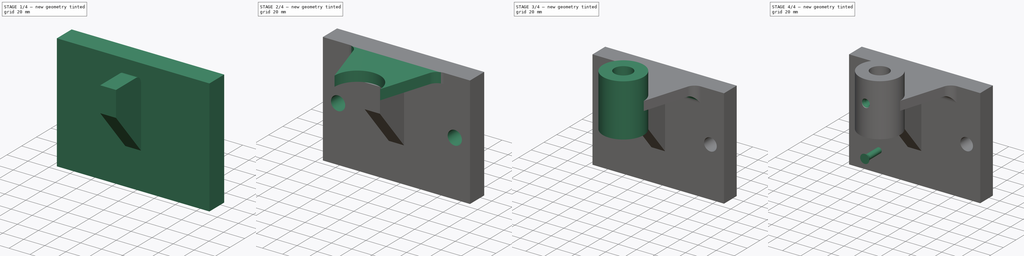
[diagram: build sequence overview — one tinted view per stage of 4, left to right]
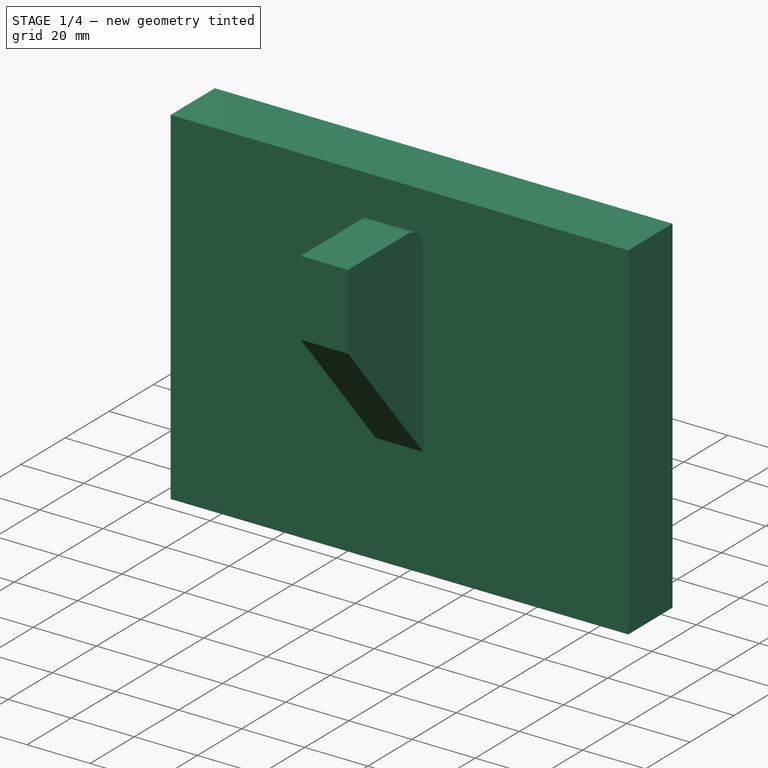
[diagram: stage 1 of 4 — iso view after this stage's code; geometry added in this stage tinted green]
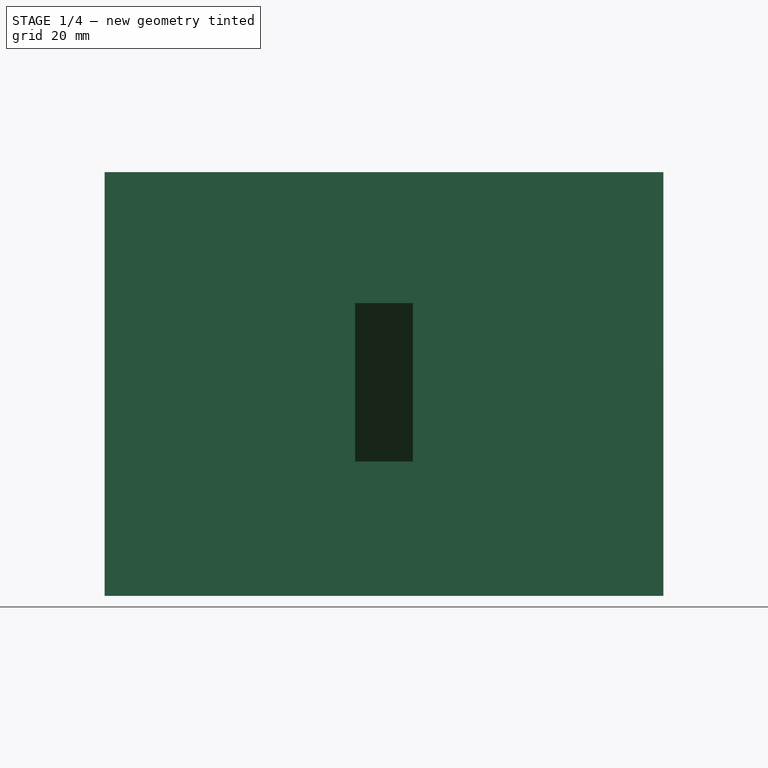
[diagram: stage 1 of 4 — front view after this stage's code; geometry added in this stage tinted green]
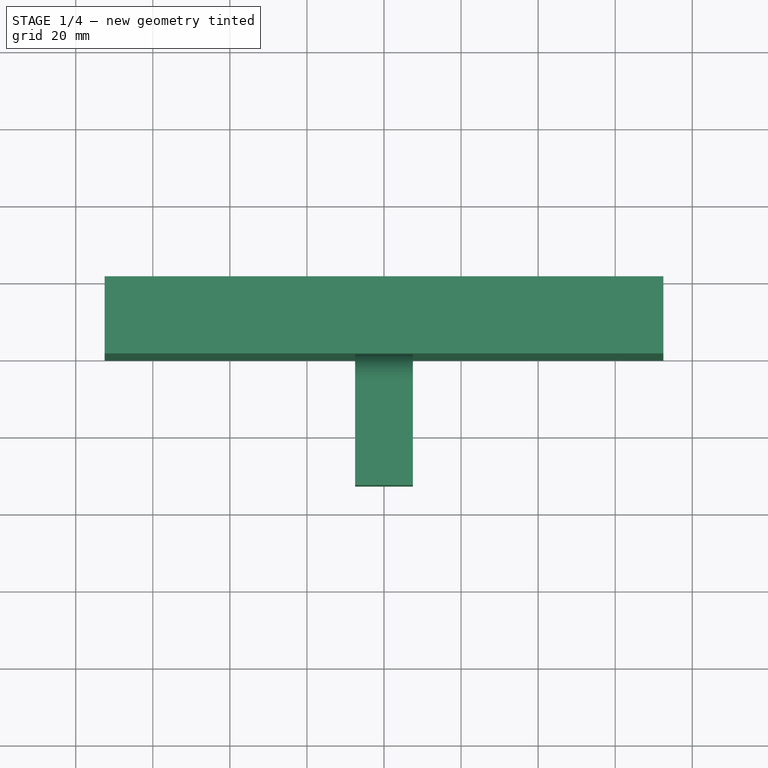
[diagram: stage 1 of 4 — top view after this stage's code; geometry added in this stage tinted green]
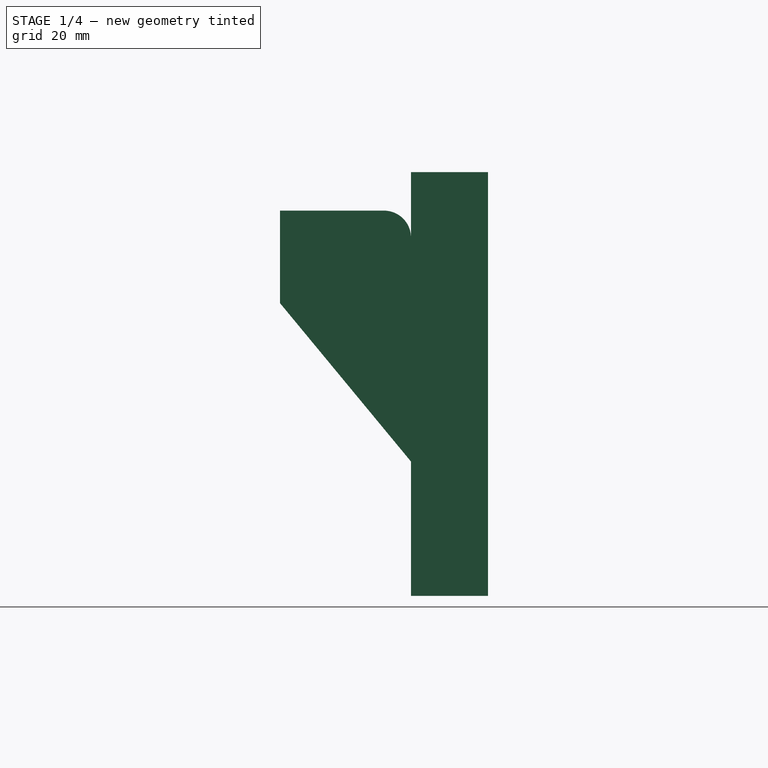
[diagram: stage 1 of 4 — right view after this stage's code; geometry added in this stage tinted green]
FCSTD DOCUMENT  (FreeCAD 0.16R)
Label: Fig 4.11 Final
License: All rights reserved
LicenseURL: http://en.wikipedia.org/wiki/All_rights_reserved
objects: Sketcher::SketchObject×6, PartDesign::Pad×4, PartDesign::Pocket×1, PartDesign::Fillet×1, PartDesign::Revolution×1, Part::Feature×1, Part::Cut×1, Part::MultiFuse×1
note: 22 computed .brp shape members not serialized (recipe doc carries the construction recipe); baked Part::Feature solids carry a one-line shape summary decoded from their .brp

FEATURE [Sketcher::SketchObject] Sketch
  Placement = pos=(0,0,0) rot=(-1,0,0;4.71239rad)
  sketch-geometry (4):
    g0: LineSegment StartX=-72.5 StartY=55 StartZ=0 EndX=72.5 EndY=55 EndZ=0
    g1: LineSegment StartX=72.5 StartY=55 StartZ=0 EndX=72.5 EndY=-55 EndZ=0
    g2: LineSegment StartX=72.5 StartY=-55 StartZ=0 EndX=-72.5 EndY=-55 EndZ=0
    g3: LineSegment StartX=-72.5 StartY=-55 StartZ=0 EndX=-72.5 EndY=55 EndZ=0
  constraints (12):
    c: Coincident(g0,g1)
    c: Coincident(g1,g2)
    c: Coincident(g2,g3)
    c: Coincident(g3,g0)
    c: Horizontal(g0)
    c: Horizontal(g2)
    c: Vertical(g1)
    c: Vertical(g3)
    c: DistanceY(g3,g3) = 110
    c: DistanceX(g0,g0) = 145
    c: Symmetric(g0,g0,g-2)
    c: Symmetric(g2,g0,g-1)
FEATURE [PartDesign::Pad] Pad
  Length = 20
  Length2 = 100
  Placement = pos=(0,0,0) rot=(-1,0,0;4.71239rad)
  Sketch = -> Sketch
  Type = 0
FEATURE [Sketcher::SketchObject] Sketch004
  Placement = pos=(0,0,0) rot=(0.57735,0.57735,0.57735;2.0944rad)
  sketch-geometry (5):
    g0: LineSegment StartX=-20 StartY=-20.1196 StartZ=0 EndX=-20 EndY=38 EndZ=0
    g1: LineSegment StartX=-27 StartY=45 StartZ=0 EndX=-54 EndY=45 EndZ=0
    g2: LineSegment StartX=-54 StartY=45 StartZ=0 EndX=-54 EndY=21 EndZ=0
    g3: LineSegment StartX=-54 StartY=21 StartZ=0 EndX=-20 EndY=-20.1196 EndZ=0
    g4: ArcOfCircle CenterX=-27 CenterY=38 CenterZ=0 NormalX=0 NormalY=0 NormalZ=1 Radius=7 StartAngle=0 EndAngle=1.5708
  constraints (13):
    c: Vertical(g0)
    c: Horizontal(g1)
    c: Coincident(g1,g2)
    c: Vertical(g2)
    c: Coincident(g2,g3)
    c: Coincident(g3,g0)
    c: DistanceX(g0,g-1) = 20
    c: DistanceY(g-1,g2) = 21
    c: DistanceX(g2,g-1) = 54
    c: Tangent(g1,g4) = -1.5708
    c: Tangent(g0,g4) = -1.5708
    c: DistanceY(g-1,g1) = 45
    c: Radius(g4) = 7
FEATURE [PartDesign::Pad] Pad003
  Length = 15
  Length2 = 100
  Midplane = true
  Placement = pos=(0,0,0) rot=(0.57735,0.57735,0.57735;2.0944rad)
  Sketch = -> Sketch004
  Type = 0
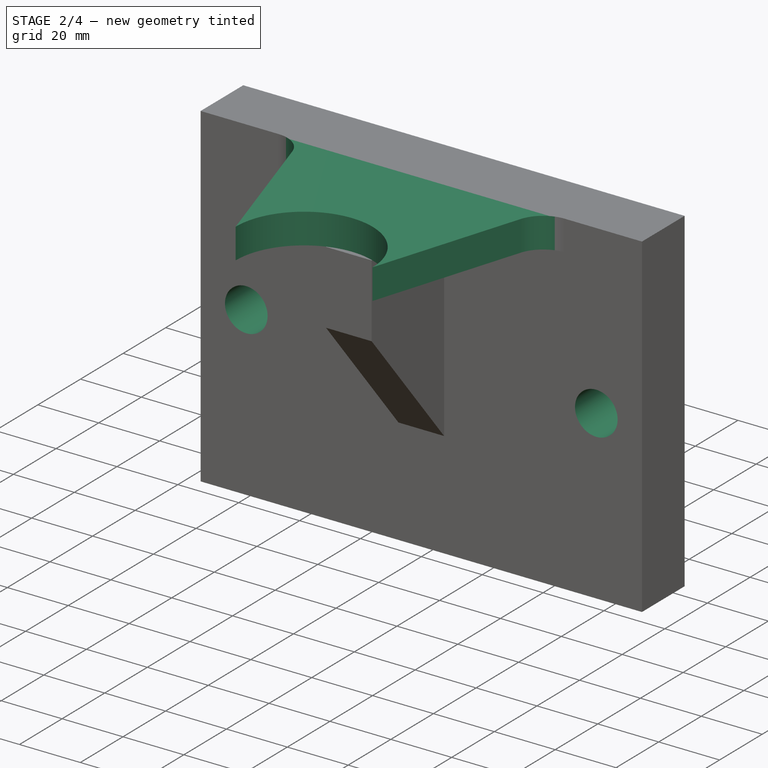
[diagram: stage 2 of 4 — iso view after this stage's code; geometry added in this stage tinted green]
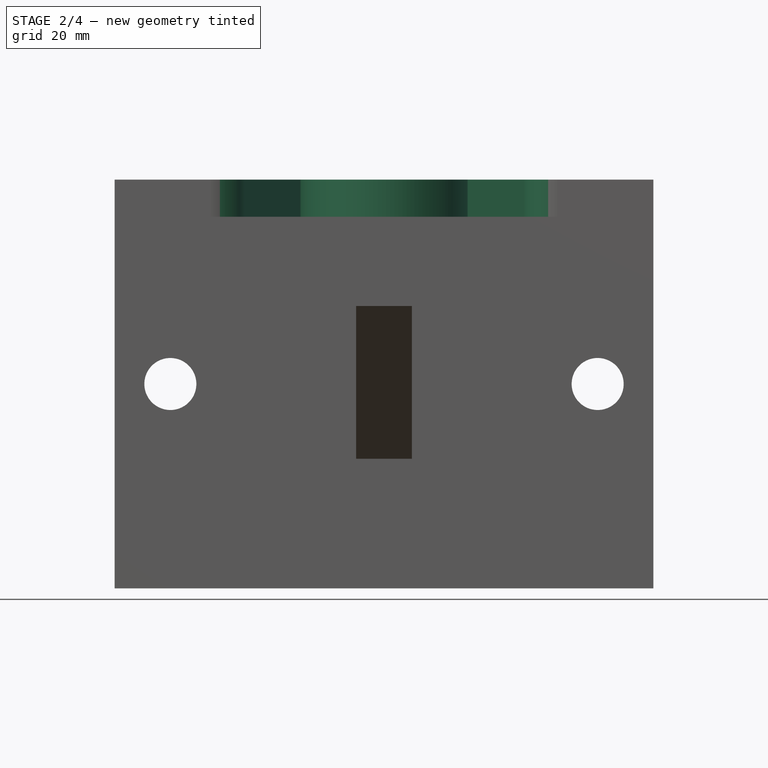
[diagram: stage 2 of 4 — front view after this stage's code; geometry added in this stage tinted green]
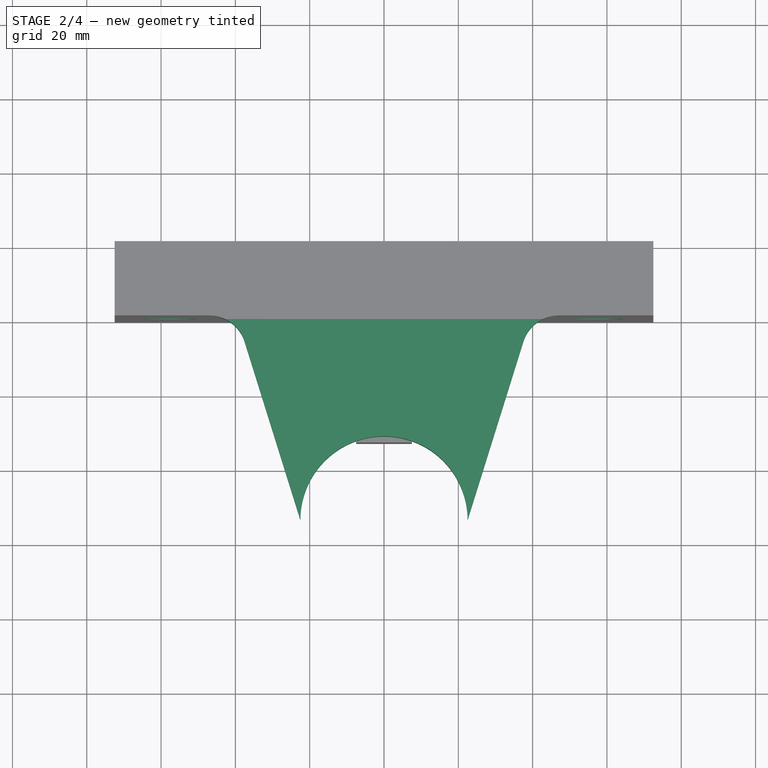
[diagram: stage 2 of 4 — top view after this stage's code; geometry added in this stage tinted green]
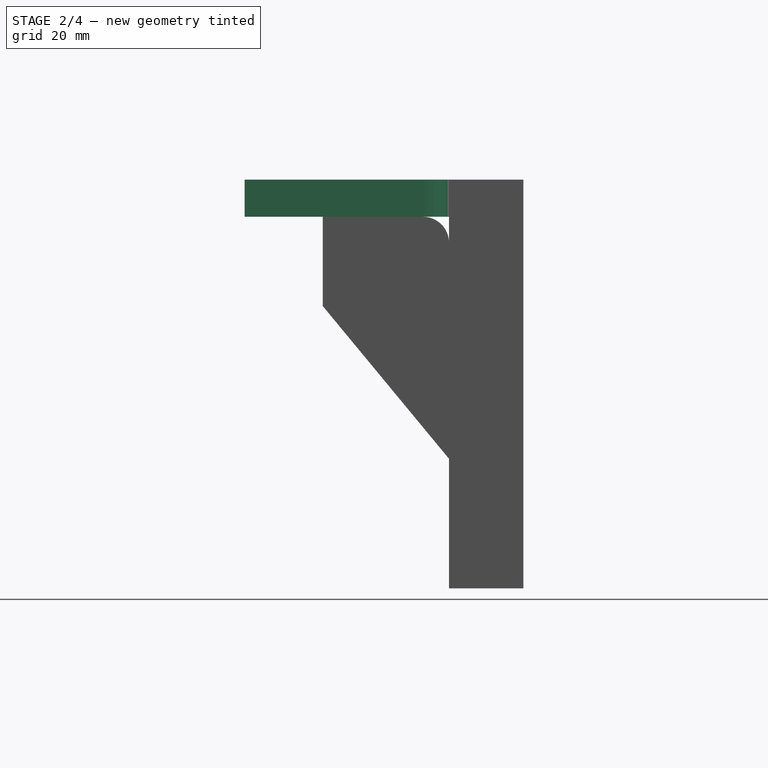
[diagram: stage 2 of 4 — right view after this stage's code; geometry added in this stage tinted green]
FEATURE [Sketcher::SketchObject] Sketch001
  Placement = pos=(0,-20,0) rot=(1,0,0;1.5708rad)
  Support = -> Pad [Face6]
  sketch-geometry (2):
    g0: Circle CenterX=-57.5 CenterY=0 CenterZ=0 NormalX=0 NormalY=0 NormalZ=1 Radius=7
    g1: Circle CenterX=57.5 CenterY=0 CenterZ=0 NormalX=0 NormalY=0 NormalZ=1 Radius=7
  constraints (6):
    c: PointOnObject(g0,g-1)
    c: PointOnObject(g1,g-1)
    c: Equal(g0,g1)
    c: Radius(g0) = 7
    c: DistanceX(g0,g1) = 115
    c: Symmetric(g0,g1,g-2)
FEATURE [PartDesign::Pocket] Pocket
  Length = 5
  Placement = pos=(0,0,0) rot=(-1,0,0;4.71239rad)
  Sketch = -> Sketch001
  Type = 1
FEATURE [Sketcher::SketchObject] Sketch003
  Placement = pos=(0,0,55) rot=(0,0,1;3.14159rad)
  Support = -> Pocket [Face1]
  sketch-geometry (6):
    g0: LineSegment StartX=-47.0445 StartY=20 StartZ=0 EndX=47.0445 EndY=20 EndZ=0
    g1: ArcOfCircle CenterX=0 CenterY=75 CenterZ=0 NormalX=0 NormalY=0 NormalZ=1 Radius=22.5 StartAngle=3.14159 EndAngle=6.28319
    g2: LineSegment StartX=-22.5 StartY=75 StartZ=0 EndX=-37.5 EndY=27.0163 EndZ=0
    g3: LineSegment StartX=22.5 StartY=75 StartZ=0 EndX=37.5 EndY=27.0163 EndZ=0
    g4: ArcOfCircle CenterX=47.0445 CenterY=30 CenterZ=0 NormalX=0 NormalY=0 NormalZ=1 Radius=10 StartAngle=3.44457 EndAngle=4.71239
    g5: ArcOfCircle CenterX=-47.0445 CenterY=30 CenterZ=0 NormalX=0 NormalY=0 NormalZ=1 Radius=10 StartAngle=4.71239 EndAngle=5.9802
  constraints (19):
    c: Coincident(g2,g1)
    c: Coincident(g3,g1)
    c: DistanceY(g-1,g1) = 75
    c: Radius(g1) = 22.5
    c: DistanceX(g2,g3) = 75
    c: Coincident(g4,g3)
    c: Coincident(g4,g0)
    c: Coincident(g5,g0)
    c: Radius(g4) = 10
    c: Tangent(g4,g3)
    c: Symmetric(g3,g2,g-2)
    c: Symmetric(g1,g1,g-2)
    c: Tangent(g5,g2)
    c: Radius(g5) = 10
    c: Tangent(g0,g5)
    c: Tangent(g4,g0)
    c: Horizontal(g0)
    c: DistanceY(g-1,g0) = 20
    c: Coincident(g2,g5)
FEATURE [PartDesign::Pad] Pad002
  Length = 10
  Length2 = 100
  Placement = pos=(0,0,0) rot=(-1,0,0;4.71239rad)
  Reversed = true
  Sketch = -> Sketch003
  Type = 0
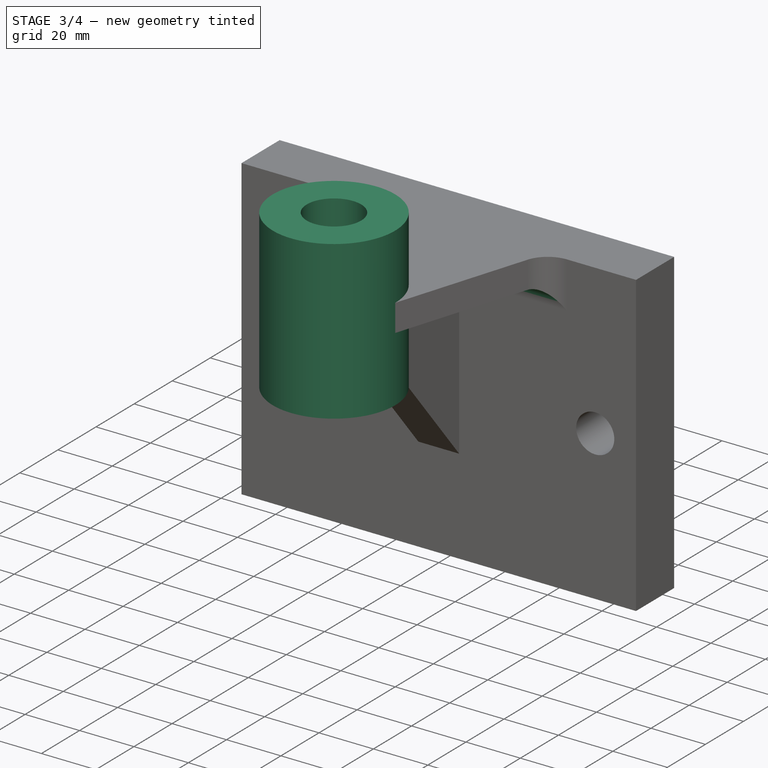
[diagram: stage 3 of 4 — iso view after this stage's code; geometry added in this stage tinted green]
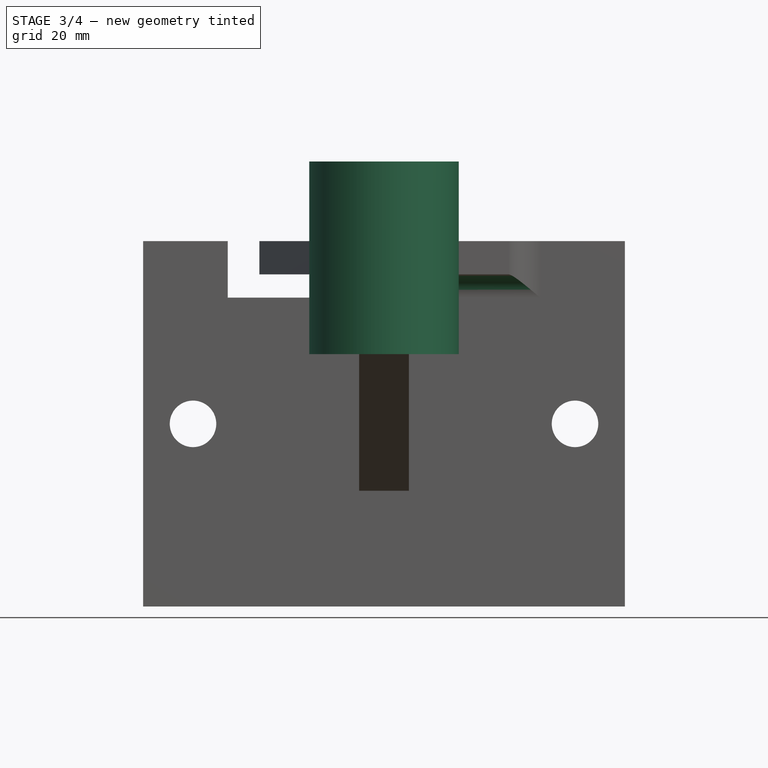
[diagram: stage 3 of 4 — front view after this stage's code; geometry added in this stage tinted green]
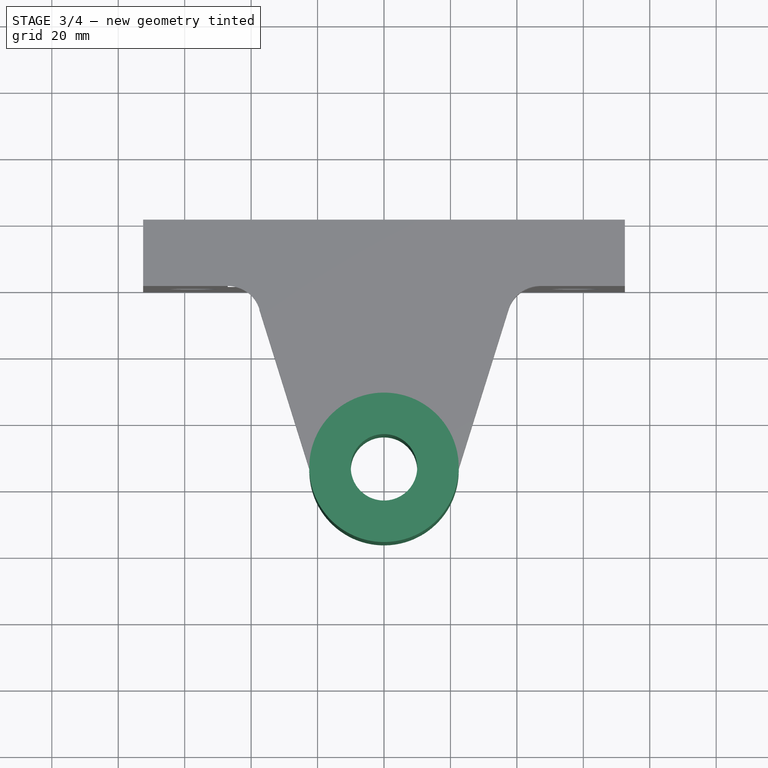
[diagram: stage 3 of 4 — top view after this stage's code; geometry added in this stage tinted green]
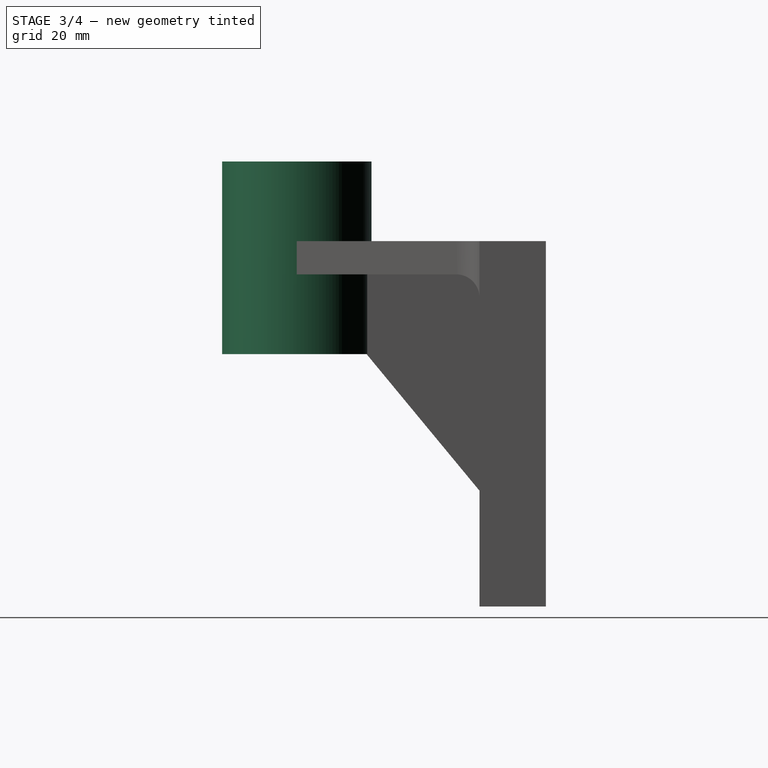
[diagram: stage 3 of 4 — right view after this stage's code; geometry added in this stage tinted green]
FEATURE [Sketcher::SketchObject] Sketch002
  Placement = pos=(0,0,21) rot=(0,0,1;0rad)
  sketch-geometry (2):
    g0: Circle CenterX=0 CenterY=-75 CenterZ=0 NormalX=0 NormalY=0 NormalZ=1 Radius=10
    g1: Circle CenterX=0 CenterY=-75 CenterZ=0 NormalX=0 NormalY=0 NormalZ=1 Radius=22.5
  constraints (5):
    c: PointOnObject(g0,g-2)
    c: Radius(g0) = 10
    c: Coincident(g1,g0)
    c: Radius(g1) = 22.5
    c: DistanceY(g0,g-1) = 75
FEATURE [PartDesign::Pad] Pad001
  Length = 58
  Length2 = 100
  Placement = pos=(0,0,21) rot=(0,0,1;0rad)
  Sketch = -> Sketch002
  Type = 0
FEATURE [PartDesign::Fillet] Fillet
  Base = -> Pad002 [Edge14]
  Placement = pos=(0,0,0) rot=(-1,0,0;4.71239rad)
  Radius = 7
FEATURE [Part::MultiFuse] Fusion
  Shapes = -> [Fillet,Pad003]
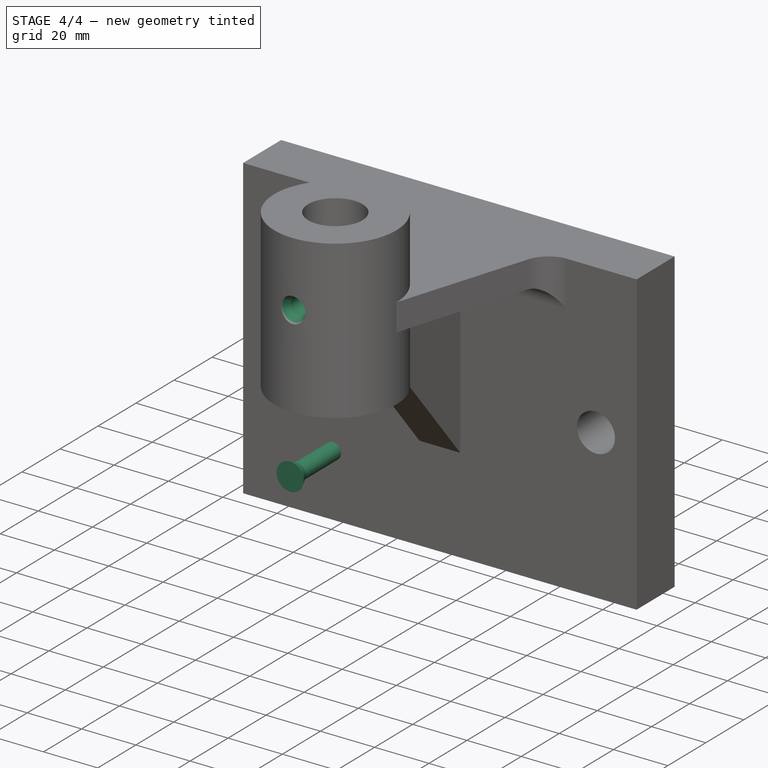
[diagram: stage 4 of 4 — iso view after this stage's code; geometry added in this stage tinted green]
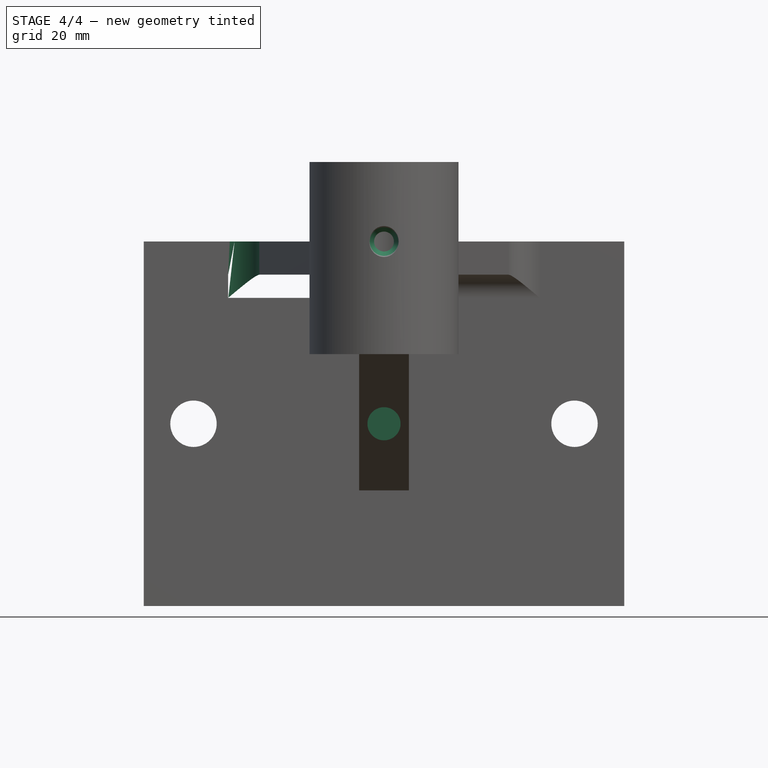
[diagram: stage 4 of 4 — front view after this stage's code; geometry added in this stage tinted green]
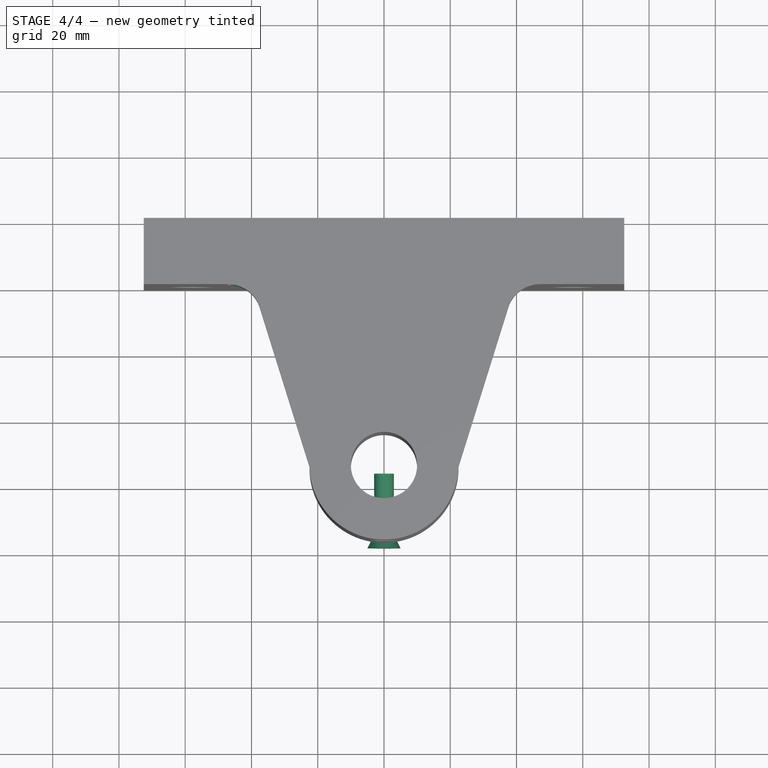
[diagram: stage 4 of 4 — top view after this stage's code; geometry added in this stage tinted green]
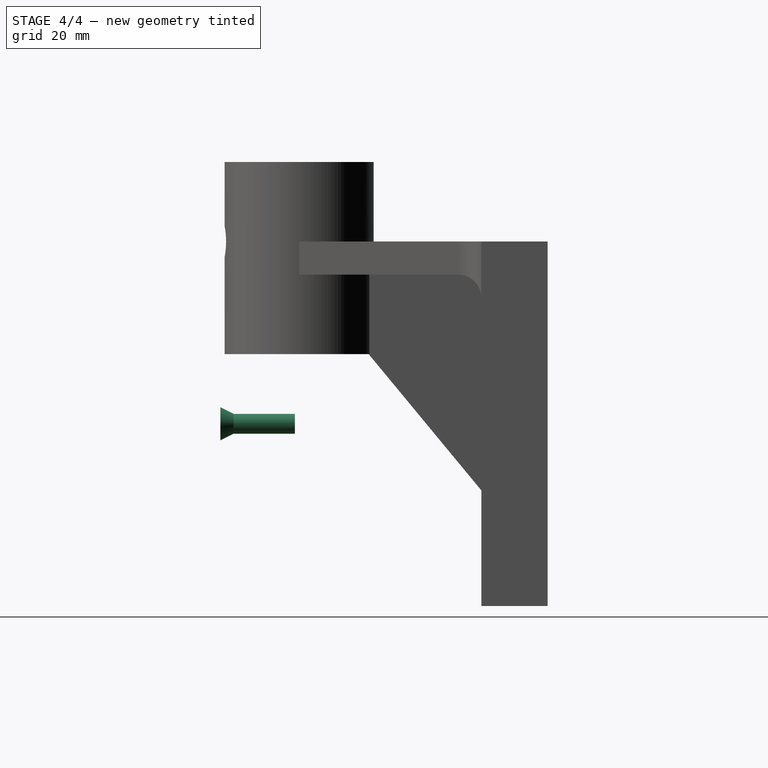
[diagram: stage 4 of 4 — right view after this stage's code; geometry added in this stage tinted green]
FEATURE [Sketcher::SketchObject] Sketch005
  Placement = pos=(0,0,0) rot=(0.57735,0.57735,0.57735;2.0944rad)
  sketch-geometry (5):
    g0: LineSegment StartX=-98.7795 StartY=5 StartZ=0 EndX=-94.7795 EndY=3 EndZ=0
    g1: LineSegment StartX=-94.7795 StartY=3 StartZ=0 EndX=-76.2795 EndY=3 EndZ=0
    g2: LineSegment StartX=-76.2795 StartY=3 StartZ=0 EndX=-76.2795 EndY=0 EndZ=0
    g3: LineSegment StartX=-76.2795 StartY=0 StartZ=0 EndX=-98.7795 EndY=0 EndZ=0
    g4: LineSegment StartX=-98.7795 StartY=0 StartZ=0 EndX=-98.7795 EndY=5 EndZ=0
  constraints (14):
    c: Coincident(g0,g1)
    c: Horizontal(g1)
    c: Coincident(g1,g2)
    c: PointOnObject(g2,g-1)
    c: Vertical(g2)
    c: Coincident(g2,g3)
    c: PointOnObject(g3,g-1)
    c: Coincident(g3,g4)
    c: Coincident(g4,g0)
    c: Vertical(g4)
    c: DistanceX(g3,g3) = 22.5
    c: DistanceY(g4,g4) = 5
    c: DistanceY(g2,g0) = 3
    c: DistanceX(g0,g0) = 4
FEATURE [PartDesign::Revolution] Revolution
  Angle = 360
  Axis = (0,1,0)
  Base = (0,0,0)
  Placement = pos=(0,0,0) rot=(0.57735,0.57735,0.57735;2.0944rad)
  ReferenceAxis = -> Sketch005 [H_Axis]
  Sketch = -> Sketch005
FEATURE [Part::Feature] Revolution003
  Placement = pos=(0,0.595268,55) rot=(0.57735,0.57735,0.57735;2.0944rad)
  shape: bbox 10 x 22.5 x 10 mm, 4 faces (baked)
FEATURE [Part::Cut] Cut
  Base = -> Pad001
  Tool = -> Revolution003
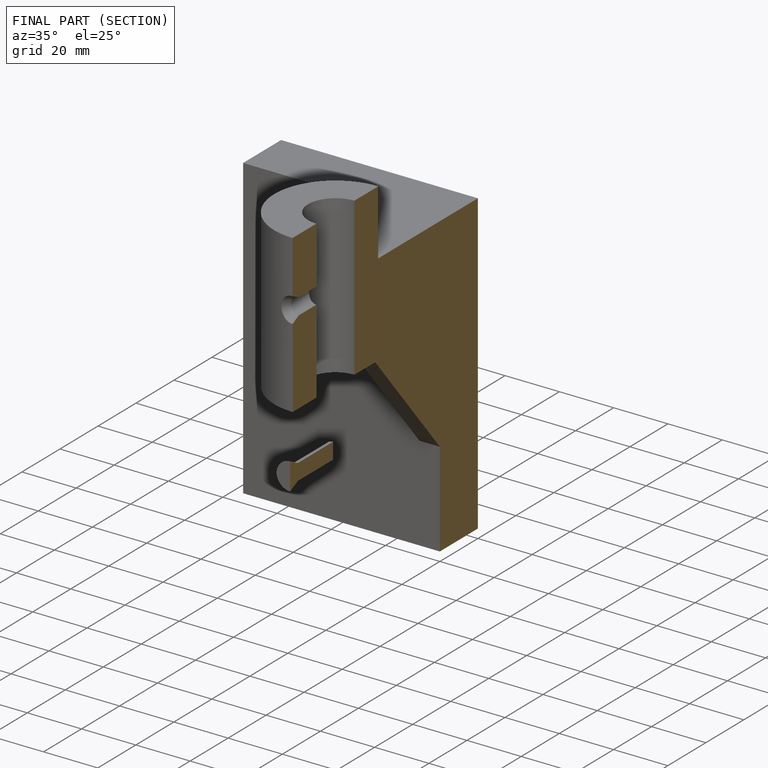
[diagram: finished part — half-section view (interior)]
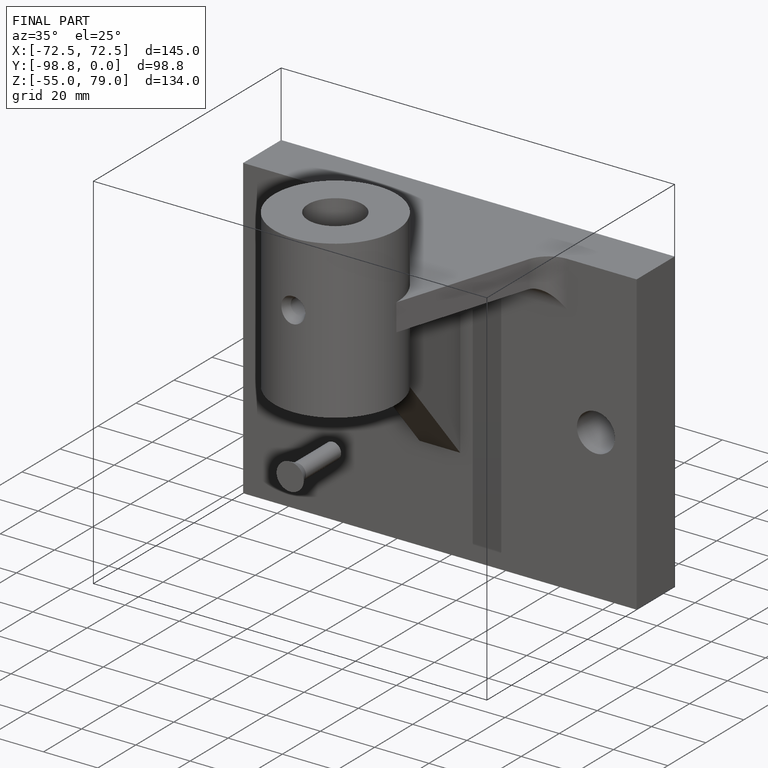
[diagram: finished part — iso view with bounding-box wireframe]
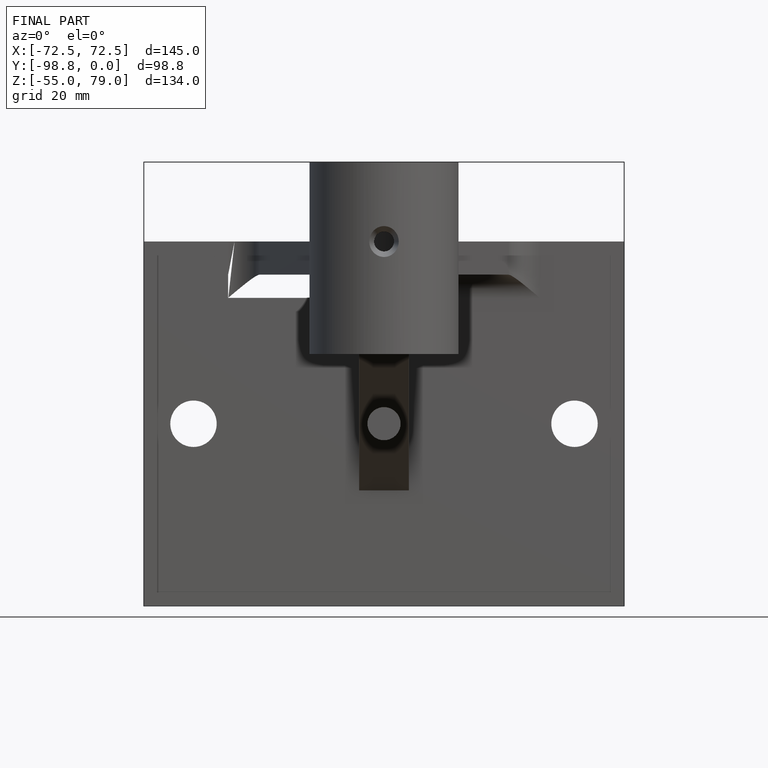
[diagram: finished part — front view with bounding-box wireframe]
